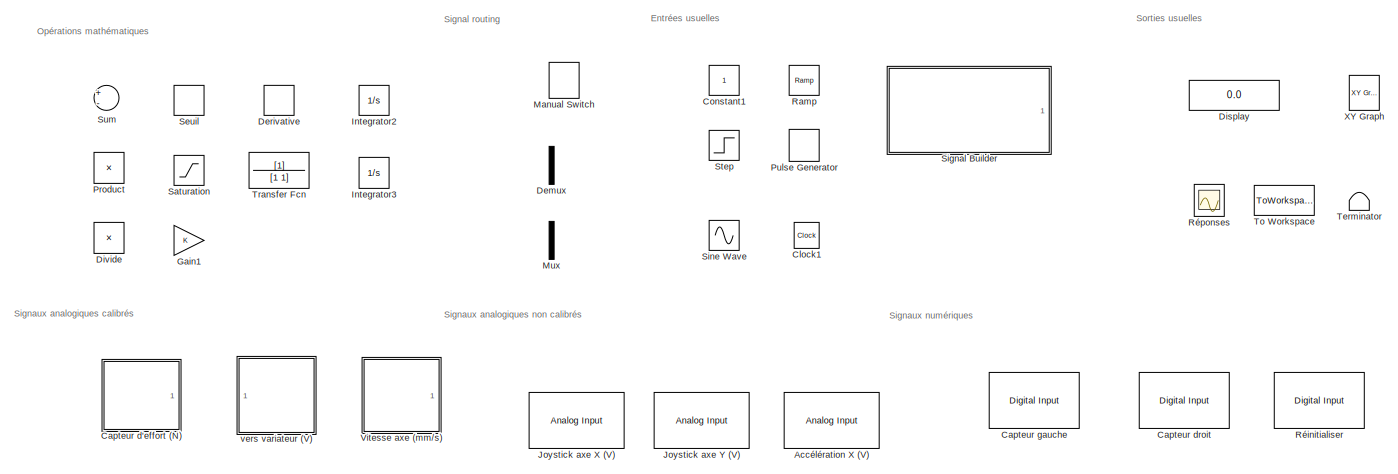
[diagram: root canvas - part 1/2, full width, top band]
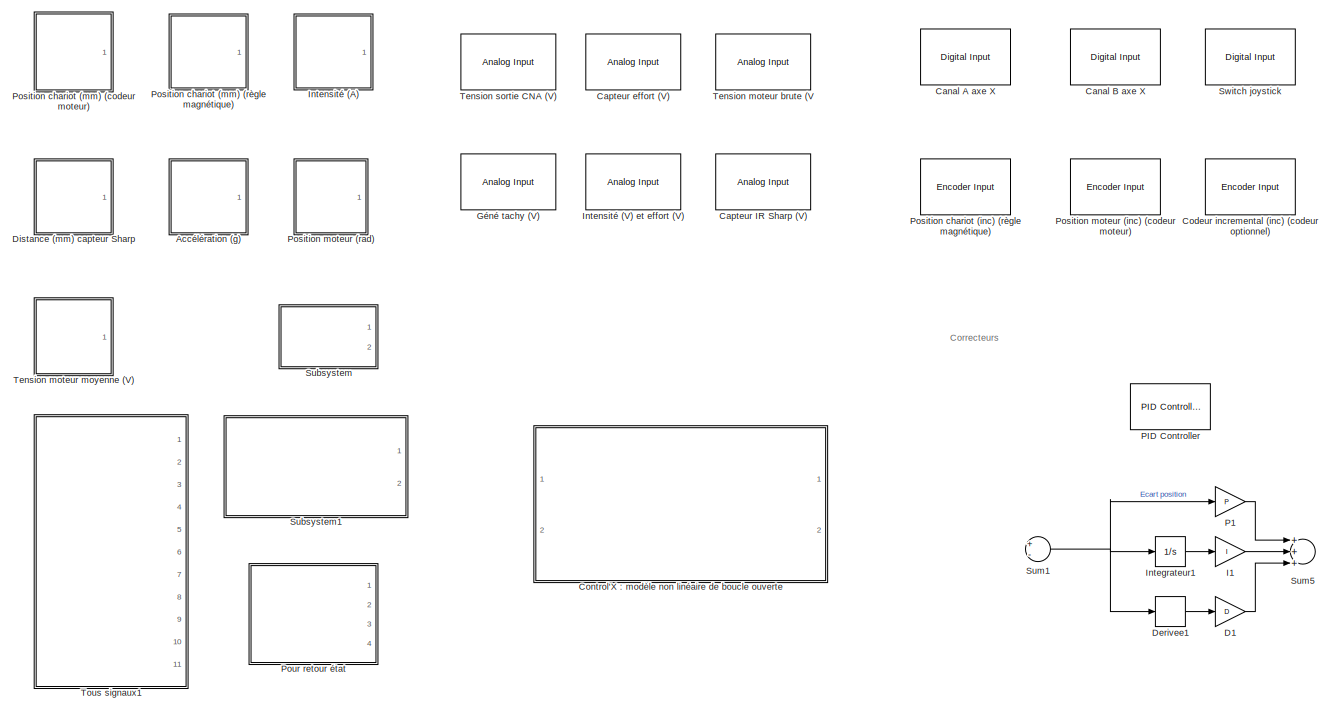
[diagram: root canvas - part 2/2, full width, bottom band]
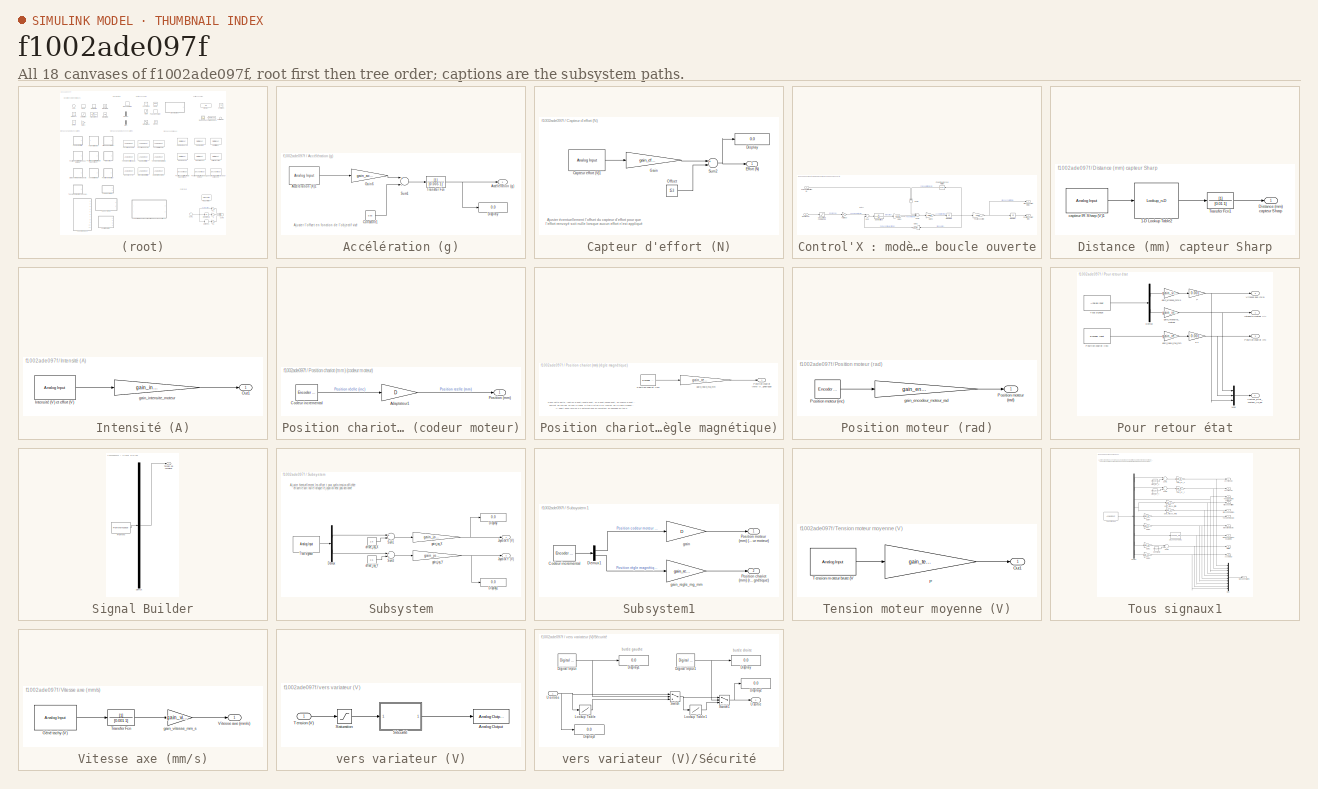
[diagram: thumbnail index - all 18 canvases of the model, root first then tree order]
MODEL slx_f1002ade097f
KIND model
CONFIG AbsTol = auto
CONFIG FixedStep = auto
CONFIG MaxStep = auto
CONFIG MinStep = auto
CONFIG RelTol = 1e-3
CONFIG SampleTimeConstraint = Unconstrained
CONFIG Solver = ode45
CONFIG SolverMode = Auto
CONFIG SolverName = ode45
CONFIG StartTime = 0.0
CONFIG StopTime = 10.0
BLOCK [SubSystem] Accélération (g)
  Ports = [0, 1]
  RequestExecContextInheritance = off
BLOCK [Reference] Accélération (g)/Accélération (X)1  REF=sldrtlib/Analog Input
  AttributesFormatString = National Instruments\nPCIe-6321 [auto]
  Channels = 15
  DataType = 1
  DrvAddress = 4294967295
  DrvName = National_Instruments/PCIe-6321
  DrvOptions = [0 0 0 2 2 2 0]
  MaxMissedTicks = 10
  Ports = [0, 1]
  RangeMode = 1
  SampleTime = dt
  ShowMissedTicks = off
  SourceBlock = sldrtlib/Analog Input
  SourceType = Simulink Desktop Real-Time Analog Input
  VoltRange = 1
  YieldWhenWaiting = off
BLOCK [Outport] Accélération (g)/Accélération (g)
  IconDisplay = Port number
BLOCK [Constant] Accélération (g)/Constant1
  SampleTime = dt
  Value = 9.65
BLOCK [Display] Accélération (g)/Display
  Decimation = 1
  Ports = [1]
BLOCK [Gain] Accélération (g)/Gain6
  Gain = gain_accelero
  OutDataTypeStr = Inherit: Inherit via internal rule
  ParamDataTypeStr = Inherit: Inherit via internal rule
  SaturateOnIntegerOverflow = off
BLOCK [Sum] Accélération (g)/Sum1
  InputSameDT = off
  Inputs = +-
  OutDataTypeStr = Inherit: Inherit via internal rule
  Ports = [2, 1]
  SaturateOnIntegerOverflow = off
BLOCK [TransferFcn] Accélération (g)/Transfer Fcn
  Denominator = [0.005 1]
BLOCK [Reference] Accélération X (V)  REF=sldrtlib/Analog Input
  AttributesFormatString = National Instruments\nPCIe-6321 [auto]
  Channels = 15
  DataType = 1
  DrvAddress = 4294967295
  DrvName = National_Instruments/PCIe-6321
  DrvOptions = [0 0 0 2 2 2 0]
  MaxMissedTicks = 10
  Ports = [0, 1]
  RangeMode = 1
  SampleTime = dt
  ShowMissedTicks = off
  SourceBlock = sldrtlib/Analog Input
  SourceType = Simulink Desktop Real-Time Analog Input
  VoltRange = 1
  YieldWhenWaiting = off
BLOCK [Reference] Canal A axe X  REF=sldrtlib/Digital Input
  AttributesFormatString = National Instruments\nPCIe-6321 [auto]
  BitMode = 1
  Channels = 5
  DataType = 1
  DrvAddress = 4294967295
  DrvName = National_Instruments/PCIe-6321
  DrvOptions = [0 0 0 2 2 2 0]
  MaxMissedTicks = 10
  Ports = [0, 1]
  SampleTime = dt
  ShowMissedTicks = off
  SourceBlock = sldrtlib/Digital Input
  SourceType = Simulink Desktop Real-Time Digital Input
  YieldWhenWaiting = on
BLOCK [Reference] Canal B axe X  REF=sldrtlib/Digital Input
  AttributesFormatString = National Instruments\nPCIe-6321 [auto]
  BitMode = 1
  Channels = 4
  DataType = 1
  DrvAddress = 4294967295
  DrvName = National_Instruments/PCIe-6321
  DrvOptions = [0 0 0 2 2 2 0]
  MaxMissedTicks = 10
  Ports = [0, 1]
  SampleTime = dt
  ShowMissedTicks = off
  SourceBlock = sldrtlib/Digital Input
  SourceType = Simulink Desktop Real-Time Digital Input
  YieldWhenWaiting = on
BLOCK [Reference] Capteur IR Sharp (V)  REF=sldrtlib/Analog Input
  AttributesFormatString = National Instruments\nPCIe-6321 [auto]
  Channels = 7
  DataType = 1
  DrvAddress = 4294967295
  DrvName = National_Instruments/PCIe-6321
  DrvOptions = [0 0 0 2 2 2 0]
  MaxMissedTicks = 10
  Ports = [0, 1]
  RangeMode = 1
  SampleTime = dt
  ShowMissedTicks = off
  SourceBlock = sldrtlib/Analog Input
  SourceType = Simulink Desktop Real-Time Analog Input
  VoltRange = 1
  YieldWhenWaiting = off
BLOCK [SubSystem] Capteur d'effort (N)
  Ports = [0, 1]
  RequestExecContextInheritance = off
BLOCK [Reference] Capteur d'effort (N)/Capteur effort (V)1  REF=sldrtlib/Analog Input
  AttributesFormatString = National Instruments\nPCIe-6321 [auto]
  Channels = 14
  DataType = 1
  DrvAddress = 4294967295
  DrvName = National_Instruments/PCIe-6321
  DrvOptions = [0 0 0 2 2 2 0]
  MaxMissedTicks = 10
  Ports = [0, 1]
  RangeMode = 1
  SampleTime = dt
  ShowMissedTicks = off
  SourceBlock = sldrtlib/Analog Input
  SourceType = Simulink Desktop Real-Time Analog Input
  VoltRange = 1
  YieldWhenWaiting = off
BLOCK [Display] Capteur d'effort (N)/Display
  Decimation = 1
  Ports = [1]
BLOCK [Outport] Capteur d'effort (N)/Effort (N)
  IconDisplay = Port number
BLOCK [Gain] Capteur d'effort (N)/Gain
  Gain = gain_effort_ext
  OutDataTypeStr = Inherit: Inherit via internal rule
  ParamDataTypeStr = Inherit: Inherit via internal rule
  SaturateOnIntegerOverflow = off
BLOCK [Constant] Capteur d'effort (N)/Offset
  Value = 15.3
BLOCK [Sum] Capteur d'effort (N)/Sum2
  InputSameDT = off
  Inputs = +-
  OutDataTypeStr = Inherit: Inherit via internal rule
  Ports = [2, 1]
  SaturateOnIntegerOverflow = off
BLOCK [Reference] Capteur droit  REF=sldrtlib/Digital Input
  AttributesFormatString = National Instruments\nPCIe-6321 [auto]
  BitMode = 1
  Channels = 2
  DataType = 1
  DrvAddress = 4294967295
  DrvName = National_Instruments/PCIe-6321
  DrvOptions = [0 0 0 2 2 2 0]
  MaxMissedTicks = 10
  Ports = [0, 1]
  SampleTime = dt
  ShowMissedTicks = off
  SourceBlock = sldrtlib/Digital Input
  SourceType = Simulink Desktop Real-Time Digital Input
  YieldWhenWaiting = on
BLOCK [Reference] Capteur effort (V)  REF=sldrtlib/Analog Input
  AttributesFormatString = National Instruments\nPCIe-6321 [auto]
  Channels = 14
  DataType = 1
  DrvAddress = 4294967295
  DrvName = National_Instruments/PCIe-6321
  DrvOptions = [0 0 0 2 2 2 0]
  MaxMissedTicks = 10
  Ports = [0, 1]
  RangeMode = 1
  SampleTime = dt
  ShowMissedTicks = off
  SourceBlock = sldrtlib/Analog Input
  SourceType = Simulink Desktop Real-Time Analog Input
  VoltRange = 1
  YieldWhenWaiting = off
BLOCK [Reference] Capteur gauche  REF=sldrtlib/Digital Input
  AttributesFormatString = National Instruments\nPCIe-6321 [auto]
  BitMode = 1
  Channels = 3
  DataType = 1
  DrvAddress = 4294967295
  DrvName = National_Instruments/PCIe-6321
  DrvOptions = [0 0 0 2 2 2 0]
  MaxMissedTicks = 10
  Ports = [0, 1]
  SampleTime = dt
  ShowMissedTicks = off
  SourceBlock = sldrtlib/Digital Input
  SourceType = Simulink Desktop Real-Time Digital Input
  YieldWhenWaiting = on
BLOCK [Clock] Clock1
  DisplayTime = on
BLOCK [Reference] Codeur incremental  (inc) (codeur optionnel)  REF=sldrtlib/Encoder Input
  AttributesFormatString = National Instruments\nPCIe-6321 [auto]
  Channels = 4
  DataType = 1
  DrvAddress = 4294967295
  DrvName = National_Instruments/PCIe-6321
  DrvOptions = [0 0 0 2 2 2 2]
  IndexPulse = 1
  InputFilter = Inf
  MaxMissedTicks = 10
  Ports = [0, 1]
  QuadMode = 3
  SampleTime = dt
  ShowMissedTicks = off
  SourceBlock = sldrtlib/Encoder Input
  SourceType = Simulink Desktop Real-Time Encoder Input
  YieldWhenWaiting = off
BLOCK [Constant] Constant1
  SampleTime = dt
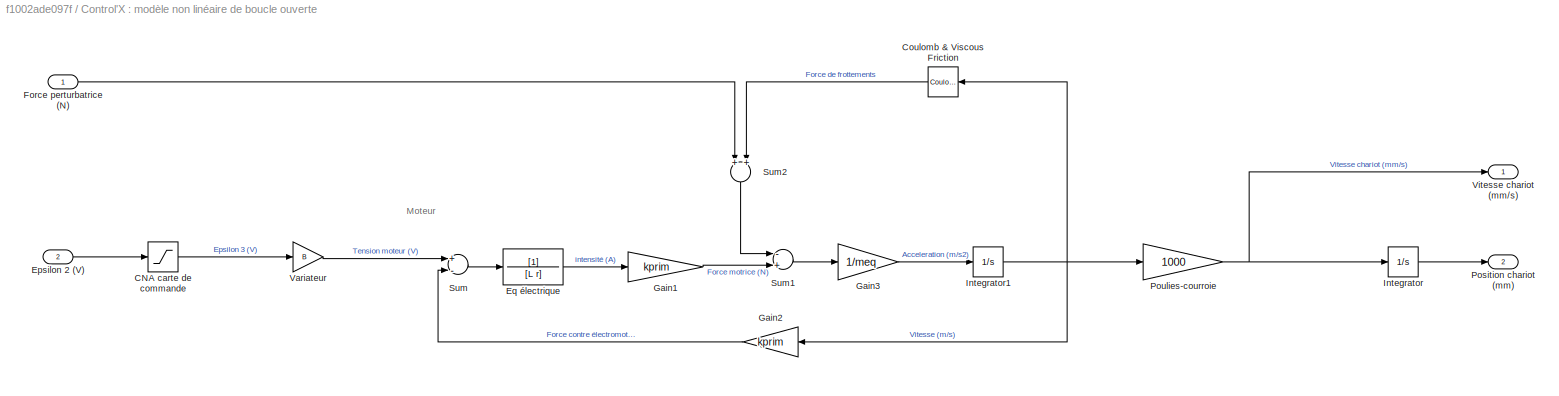
BLOCK [SubSystem] Control'X : modèle non linéaire de boucle ouverte
  Ports = [2, 2]
  RequestExecContextInheritance = off
BLOCK [Saturate] Control'X : modèle non linéaire de boucle ouverte/CNA carte de commande
  InputPortMap = u0
  LowerLimit = -Vsat
  Ports = [1, 1]
  UpperLimit = Vsat
BLOCK [Reference] Control'X : modèle non linéaire de boucle ouverte/Coulomb & Viscous Friction  REF=simulink/Discontinuities/Coulomb &
Viscous Friction
  Ports = [1, 1]
  SourceBlock = simulink/Discontinuities/Coulomb &\nViscous Friction
  SourceType = Coulombic and Viscous Friction
  gain = fv
  offset = Ffrott
BLOCK [Inport] Control'X : modèle non linéaire de boucle ouverte/Epsilon 2 (V)
  IconDisplay = Port number
  Port = 2
BLOCK [TransferFcn] Control'X : modèle non linéaire de boucle ouverte/Eq électrique
  Denominator = [L r]
BLOCK [Inport] Control'X : modèle non linéaire de boucle ouverte/Force perturbatrice (N)
  IconDisplay = Port number
BLOCK [Gain] Control'X : modèle non linéaire de boucle ouverte/Gain1
  Gain = kprim
  OutDataTypeStr = Inherit: Inherit via internal rule
  ParamDataTypeStr = Inherit: Inherit via internal rule
  SaturateOnIntegerOverflow = off
BLOCK [Gain] Control'X : modèle non linéaire de boucle ouverte/Gain2
  Gain = kprim
  OutDataTypeStr = Inherit: Inherit via internal rule
  ParamDataTypeStr = Inherit: Inherit via internal rule
  SaturateOnIntegerOverflow = off
BLOCK [Gain] Control'X : modèle non linéaire de boucle ouverte/Gain3
  Gain = 1/meq
  OutDataTypeStr = Inherit: Inherit via internal rule
  ParamDataTypeStr = Inherit: Inherit via internal rule
  SaturateOnIntegerOverflow = off
BLOCK [Integrator] Control'X : modèle non linéaire de boucle ouverte/Integrator
  Ports = [1, 1]
BLOCK [Integrator] Control'X : modèle non linéaire de boucle ouverte/Integrator1
  Ports = [1, 1]
BLOCK [Outport] Control'X : modèle non linéaire de boucle ouverte/Position chariot (mm)
  IconDisplay = Port number
  Port = 2
BLOCK [Gain] Control'X : modèle non linéaire de boucle ouverte/Poulies-courroie
  Gain = 1000
  OutDataTypeStr = Inherit: Inherit via internal rule
  ParamDataTypeStr = Inherit: Inherit via internal rule
  SaturateOnIntegerOverflow = off
BLOCK [Sum] Control'X : modèle non linéaire de boucle ouverte/Sum
  InputSameDT = off
  Inputs = +-
  OutDataTypeStr = Inherit: Inherit via internal rule
  Ports = [2, 1]
  SaturateOnIntegerOverflow = off
BLOCK [Sum] Control'X : modèle non linéaire de boucle ouverte/Sum1
  InputSameDT = off
  Inputs = -+
  OutDataTypeStr = Inherit: Inherit via internal rule
  Ports = [2, 1]
  SaturateOnIntegerOverflow = off
BLOCK [Sum] Control'X : modèle non linéaire de boucle ouverte/Sum2
  InputSameDT = off
  OutDataTypeStr = Inherit: Inherit via internal rule
  Ports = [2, 1]
  SaturateOnIntegerOverflow = off
BLOCK [Gain] Control'X : modèle non linéaire de boucle ouverte/Variateur
  Gain = B
  OutDataTypeStr = Inherit: Inherit via internal rule
  ParamDataTypeStr = Inherit: Inherit via internal rule
  SaturateOnIntegerOverflow = off
BLOCK [Outport] Control'X : modèle non linéaire de boucle ouverte/Vitesse chariot (mm//s)
  IconDisplay = Port number
BLOCK [Gain] D1
  Gain = D
  OutDataTypeStr = Inherit: Inherit via internal rule
  ParamDataTypeStr = Inherit: Inherit via internal rule
  SaturateOnIntegerOverflow = off
BLOCK [Demux] Demux
  DisplayOption = bar
  Outputs = 2
  Ports = [1, 2]
BLOCK [Derivative] Derivative
BLOCK [Derivative] Derivee1
BLOCK [Display] Display
  Decimation = 1
  Ports = [1]
BLOCK [SubSystem] Distance (mm) capteur Sharp
  Ports = [0, 1]
  RequestExecContextInheritance = off
BLOCK [Lookup_n-D] Distance (mm) capteur Sharp/1-D Lookup Table2
  BreakpointsForDimension1 = vecteur_de_tensions
  ExtrapMethod = Clip
  InternalRulePriority = Speed
  NumberOfTableDimensions = 1
  Ports = [1, 1]
  RndMeth = Simplest
  Table = vecteur_des_distances
  UseLastTableValue = on
BLOCK [Outport] Distance (mm) capteur Sharp/Distance (mm) capteur Sharp
  IconDisplay = Port number
BLOCK [TransferFcn] Distance (mm) capteur Sharp/Transfer Fcn1
  Denominator = [0.01 1]
BLOCK [Reference] Distance (mm) capteur Sharp/capteur IR Sharp (V)1  REF=sldrtlib/Analog Input
  AttributesFormatString = National Instruments\nPCIe-6321 [auto]
  Channels = 7
  DataType = 1
  DrvAddress = 4294967295
  DrvName = National_Instruments/PCIe-6321
  DrvOptions = [0 0 0 2 2 2 0]
  MaxMissedTicks = 10
  Ports = [0, 1]
  RangeMode = 1
  SampleTime = dt
  ShowMissedTicks = off
  SourceBlock = sldrtlib/Analog Input
  SourceType = Simulink Desktop Real-Time Analog Input
  VoltRange = 1
  YieldWhenWaiting = off
BLOCK [Product] Divide
  InputSameDT = off
  Inputs = */
  OutDataTypeStr = Inherit: Inherit via internal rule
  Ports = [2, 1]
  RndMeth = Floor
  SaturateOnIntegerOverflow = off
BLOCK [Gain] Gain1
  OutDataTypeStr = Inherit: Inherit via internal rule
  ParamDataTypeStr = Inherit: Inherit via internal rule
  SaturateOnIntegerOverflow = off
BLOCK [Reference] Géné tachy (V)  REF=sldrtlib/Analog Input
  AttributesFormatString = National Instruments\nPCIe-6321 [auto]
  Channels = 4
  DataType = 1
  DrvAddress = 4294967295
  DrvName = National_Instruments/PCIe-6321
  DrvOptions = [0 0 0 2 2 2 0]
  MaxMissedTicks = 10
  Ports = [0, 1]
  RangeMode = 1
  SampleTime = dt
  ShowMissedTicks = off
  SourceBlock = sldrtlib/Analog Input
  SourceType = Simulink Desktop Real-Time Analog Input
  VoltRange = 1
  YieldWhenWaiting = off
BLOCK [Gain] I1
  Gain = I
  OutDataTypeStr = Inherit: Inherit via internal rule
  ParamDataTypeStr = Inherit: Inherit via internal rule
  SaturateOnIntegerOverflow = off
BLOCK [Integrator] Integrateur1
  Ports = [1, 1]
BLOCK [Integrator] Integrator2
  Ports = [1, 1]
BLOCK [Integrator] Integrator3
  InitialConditionSource = external
  Ports = [2, 1]
BLOCK [Reference] Intensité  (V) et effort (V)  REF=sldrtlib/Analog Input
  AttributesFormatString = National Instruments\nPCIe-6321 [auto]
  Channels = [6,14]
  DataType = 1
  DrvAddress = 4294967295
  DrvName = National_Instruments/PCIe-6321
  DrvOptions = [0 0 0 2 2 2 0]
  MaxMissedTicks = 10
  Ports = [0, 1]
  RangeMode = 1
  SampleTime = dt
  ShowMissedTicks = off
  SourceBlock = sldrtlib/Analog Input
  SourceType = Simulink Desktop Real-Time Analog Input
  VoltRange = 1
  YieldWhenWaiting = off
BLOCK [SubSystem] Intensité (A)
  Ports = [0, 1]
  RequestExecContextInheritance = off
BLOCK [Reference] Intensité (A)/Intensité  (V) et effort (V)  REF=sldrtlib/Analog Input
  AttributesFormatString = National Instruments\nPCIe-6321 [auto]
  Channels = [6]
  DataType = 1
  DrvAddress = 4294967295
  DrvName = National_Instruments/PCIe-6321
  DrvOptions = [0 0 0 2 2 2 0]
  MaxMissedTicks = 10
  Ports = [0, 1]
  RangeMode = 1
  SampleTime = dt
  ShowMissedTicks = off
  SourceBlock = sldrtlib/Analog Input
  SourceType = Simulink Desktop Real-Time Analog Input
  VoltRange = 1
  YieldWhenWaiting = off
BLOCK [Outport] Intensité (A)/Out1
  IconDisplay = Port number
BLOCK [Gain] Intensité (A)/gain_intensite_moteur
  Gain = gain_intensite_moteur
  OutDataTypeStr = Inherit: Inherit via internal rule
  ParamDataTypeStr = Inherit: Inherit via internal rule
  SaturateOnIntegerOverflow = off
BLOCK [Reference] Joystick  axe X (V)  REF=sldrtlib/Analog Input
  AttributesFormatString = National Instruments\nPCIe-6321 [auto]
  Channels = 1
  DataType = 1
  DrvAddress = 4294967295
  DrvName = National_Instruments/PCIe-6321
  DrvOptions = [0 0 0 2 2 2 0]
  MaxMissedTicks = 10
  Ports = [0, 1]
  RangeMode = 1
  SampleTime = dt
  ShowMissedTicks = off
  SourceBlock = sldrtlib/Analog Input
  SourceType = Simulink Desktop Real-Time Analog Input
  VoltRange = 1
  YieldWhenWaiting = off
BLOCK [Reference] Joystick  axe Y (V)  REF=sldrtlib/Analog Input
  AttributesFormatString = National Instruments\nPCIe-6321 [auto]
  Channels = 2
  DataType = 1
  DrvAddress = 4294967295
  DrvName = National_Instruments/PCIe-6321
  DrvOptions = [0 0 0 2 2 2 0]
  MaxMissedTicks = 10
  Ports = [0, 1]
  RangeMode = 1
  SampleTime = dt
  ShowMissedTicks = off
  SourceBlock = sldrtlib/Analog Input
  SourceType = Simulink Desktop Real-Time Analog Input
  VoltRange = 1
  YieldWhenWaiting = off
BLOCK [ManualSwitch] Manual Switch
BLOCK [Mux] Mux
  DisplayOption = bar
  Inputs = 2
  Ports = [2, 1]
BLOCK [Gain] P1
  Gain = P
  OutDataTypeStr = Inherit: Inherit via internal rule
  ParamDataTypeStr = Inherit: Inherit via internal rule
  SaturateOnIntegerOverflow = off
BLOCK [Reference] PID Controller  REF=simulink/Continuous/PID Controller
  AntiWindupMode = none
  Controller = PID
  ControllerParametersSource = internal
  D = 0
  DGainOutDataTypeStr = Inherit: Inherit via internal rule
  DOutDataTypeStr = Inherit: Inherit via internal rule
  DOutMax = []
  DOutMin = []
  DParamDataTypeStr = Inherit: Inherit via internal rule
  DParamMax = []
  DParamMin = []
  DProdOutDataTypeStr = Inherit: Inherit via internal rule
  DifferentiatorICPrevScaledInput = 0
  DifferentiatorOutDataTypeStr = Inherit: Inherit via internal rule
  DifferentiatorOutMax = []
  DifferentiatorOutMin = []
  ExternalReset = none
  FilterContinuousStateAttributes = ''
  FilterMethod = Forward Euler
  FilterOutDataTypeStr = Inherit: Inherit via internal rule
  FilterOutMax = []
  FilterOutMin = []
  FilterRTWStateStorageClass = Auto
  FilterStateMustResolveToSignalObject = off
  Form = Parallel
  I = 1
  IGainOutDataTypeStr = Inherit: Inherit via internal rule
  IOutDataTypeStr = Inherit: Inherit via internal rule
  IOutMax = []
  IOutMin = []
  IParamDataTypeStr = Inherit: Inherit via internal rule
  IParamMax = []
  IParamMin = []
  IProdOutDataTypeStr = Inherit: Inherit via internal rule
  IgnoreLimit = off
  InitialConditionForFilter = 0
  InitialConditionForIntegrator = 0
  InitialConditionSource = internal
  IntegratorContinuousStateAttributes = ''
  IntegratorMethod = Forward Euler
  IntegratorOutDataTypeStr = Inherit: Inherit via internal rule
  IntegratorOutMax = []
  IntegratorOutMin = []
  IntegratorRTWStateStorageClass = Auto
  IntegratorStateMustResolveToSignalObject = off
  Kb = 1
  KbOutDataTypeStr = Inherit: Inherit via internal rule
  KbOutMax = []
  KbOutMin = []
  KbParamDataTypeStr = Inherit: Inherit via internal rule
  KbParamMax = []
  KbParamMin = []
  Kt = 1
  KtOutDataTypeStr = Inherit: Inherit via internal rule
  KtOutMax = []
  KtOutMin = []
  KtParamDataTypeStr = Inherit: Inherit via internal rule
  KtParamMax = []
  KtParamMin = []
  LimitOutput = off
  LinearizeAsGain = off
  LockScale = off
  LowerSaturationLimit = -inf
  N = 100
  NGainOutDataTypeStr = Inherit: Inherit via internal rule
  NOutDataTypeStr = Inherit: Inherit via internal rule
  NOutMax = []
  NOutMin = []
  NParamDataTypeStr = Inherit: Inherit via internal rule
  NParamMax = []
  NParamMin = []
  NProdOutDataTypeStr = Inherit: Inherit via internal rule
  P = 1
  PGainOutDataTypeStr = Inherit: Inherit via internal rule
  POutDataTypeStr = Inherit: Inherit via internal rule
  POutMax = []
  POutMin = []
  PParamDataTypeStr = Inherit: Inherit via internal rule
  PParamMax = []
  PParamMin = []
  PProdOutDataTypeStr = Inherit: Inherit via internal rule
  Ports = [1, 1]
  RndMeth = Floor
  SampleTime = -1
  SaturateOnIntegerOverflow = off
  SaturationOutDataTypeStr = Inherit: Same as input
  SaturationOutMax = []
  SaturationOutMin = []
  SourceBlock = simulink/Continuous/PID Controller
  SourceType = PID 1dof
  SumAccumDataTypeStr = Inherit: Inherit via internal rule
  SumDAccumDataTypeStr = Inherit: Inherit via internal rule
  SumDOutDataTypeStr = Inherit: Inherit via internal rule
  SumDOutMax = []
  SumDOutMin = []
  SumI1AccumDataTypeStr = Inherit: Inherit via internal rule
  SumI1OutDataTypeStr = Inherit: Inherit via internal rule
  SumI1OutMax = []
  SumI1OutMin = []
  SumI2AccumDataTypeStr = Inherit: Inherit via internal rule
  SumI2OutDataTypeStr = Inherit: Inherit via internal rule
  SumI2OutMax = []
  SumI2OutMin = []
  SumI3AccumDataTypeStr = Inherit: Inherit via internal rule
  SumI3OutDataTypeStr = Inherit: Inherit via internal rule
  SumI3OutMax = []
  SumI3OutMin = []
  SumOutDataTypeStr = Inherit: Inherit via internal rule
  SumOutMax = []
  SumOutMin = []
  TimeDomain = Continuous-time
  TrackingMode = off
  UpperSaturationLimit = inf
  UseFilter = on
  ZeroCross = on
BLOCK [Reference] Position chariot (inc) (règle magnétique)  REF=sldrtlib/Encoder Input
  AttributesFormatString = National Instruments\nPCIe-6321 [auto]
  Channels = 2
  DataType = 1
  DrvAddress = 4294967295
  DrvName = National_Instruments/PCIe-6321
  DrvOptions = [0 0 0 2 2 2 0]
  IndexPulse = 1
  InputFilter = Inf
  MaxMissedTicks = 10
  Ports = [0, 1]
  QuadMode = 3
  SampleTime = dt
  ShowMissedTicks = off
  SourceBlock = sldrtlib/Encoder Input
  SourceType = Simulink Desktop Real-Time Encoder Input
  YieldWhenWaiting = off
BLOCK [SubSystem] Position chariot (mm) (codeur moteur)
  Ports = [0, 1]
  RequestExecContextInheritance = off
BLOCK [Gain] Position chariot (mm) (codeur moteur)/Adaptateur1
  Gain = D
  OutDataTypeStr = Inherit: Inherit via internal rule
  ParamDataTypeStr = Inherit: Inherit via internal rule
  SaturateOnIntegerOverflow = off
BLOCK [Reference] Position chariot (mm) (codeur moteur)/Codeur incremental  REF=sldrtlib/Encoder Input
  AttributesFormatString = National Instruments\nPCIe-6321 [auto]
  Channels = 1
  DataType = 1
  DrvAddress = 4294967295
  DrvName = National_Instruments/PCIe-6321
  DrvOptions = [0 0 0 2 2 2 0]
  IndexPulse = 1
  InputFilter = Inf
  MaxMissedTicks = 10
  Ports = [0, 1]
  QuadMode = 3
  SampleTime = dt
  ShowMissedTicks = off
  SourceBlock = sldrtlib/Encoder Input
  SourceType = Simulink Desktop Real-Time Encoder Input
  YieldWhenWaiting = off
BLOCK [Outport] Position chariot (mm) (codeur moteur)/Position (mm)
  IconDisplay = Port number
BLOCK [SubSystem] Position chariot (mm) (règle magnétique)
  Ports = [0, 1]
  RequestExecContextInheritance = off
BLOCK [Reference] Position chariot (mm) (règle magnétique)/Position chariot (inc)  REF=sldrtlib/Encoder Input
  AttributesFormatString = National Instruments\nPCIe-6321 [auto]
  Channels = 2
  DataType = 1
  DrvAddress = 4294967295
  DrvName = National_Instruments/PCIe-6321
  DrvOptions = [0 0 0 2 2 2 0]
  IndexPulse = 1
  InputFilter = Inf
  MaxMissedTicks = 10
  Ports = [0, 1]
  QuadMode = 3
  SampleTime = dt
  ShowMissedTicks = off
  SourceBlock = sldrtlib/Encoder Input
  SourceType = Simulink Desktop Real-Time Encoder Input
  YieldWhenWaiting = off
BLOCK [Outport] Position chariot (mm) (règle magnétique)/Position chariot (mm) (règle magnétique)
  IconDisplay = Port number
BLOCK [Gain] Position chariot (mm) (règle magnétique)/gain_regle_mg_mm
  Gain = gain_regle_mg
  OutDataTypeStr = Inherit: Inherit via internal rule
  ParamDataTypeStr = Inherit: Inherit via internal rule
  SaturateOnIntegerOverflow = off
BLOCK [Reference] Position moteur (inc) (codeur moteur)  REF=sldrtlib/Encoder Input
  AttributesFormatString = National Instruments\nPCIe-6321 [auto]
  Channels = 1
  DataType = 1
  DrvAddress = 4294967295
  DrvName = National_Instruments/PCIe-6321
  DrvOptions = [0 0 0 2 2 2 0]
  IndexPulse = 1
  InputFilter = Inf
  MaxMissedTicks = 10
  Ports = [0, 1]
  QuadMode = 3
  SampleTime = dt
  ShowMissedTicks = off
  SourceBlock = sldrtlib/Encoder Input
  SourceType = Simulink Desktop Real-Time Encoder Input
  YieldWhenWaiting = off
BLOCK [SubSystem] Position moteur (rad)
  Ports = [0, 1]
  RequestExecContextInheritance = off
BLOCK [Reference] Position moteur (rad)/Position moteur (inc)  REF=sldrtlib/Encoder Input
  AttributesFormatString = National Instruments\nPCIe-6321 [auto]
  Channels = 1
  DataType = 1
  DrvAddress = 4294967295
  DrvName = National_Instruments/PCIe-6321
  DrvOptions = [0 0 0 2 2 2 0]
  IndexPulse = 2
  InputFilter = Inf
  MaxMissedTicks = 10
  Ports = [0, 1]
  QuadMode = 3
  SampleTime = dt
  ShowMissedTicks = off
  SourceBlock = sldrtlib/Encoder Input
  SourceType = Simulink Desktop Real-Time Encoder Input
  YieldWhenWaiting = off
BLOCK [Outport] Position moteur (rad)/Position moteur (rad)
  IconDisplay = Port number
BLOCK [Gain] Position moteur (rad)/gain_encodeur_moteur_rad
  Gain = gain_encodeur_moteur_rad
  OutDataTypeStr = Inherit: Inherit via internal rule
  ParamDataTypeStr = Inherit: Inherit via internal rule
  SaturateOnIntegerOverflow = off
BLOCK [SubSystem] Pour retour état
  Ports = [0, 4]
  RequestExecContextInheritance = off
BLOCK [Demux] Pour retour état/Demux
  DisplayOption = bar
  Outputs = 2
  Ports = [1, 2]
BLOCK [Outport] Pour retour état/Intensité moteur (A)
  IconDisplay = Port number
BLOCK [Mux] Pour retour état/Mux
  DisplayOption = bar
  Inputs = 3
  Ports = [3, 1]
BLOCK [Gain] Pour retour état/P
  Gain = 0.001
  OutDataTypeStr = Inherit: Inherit via internal rule
  ParamDataTypeStr = Inherit: Inherit via internal rule
  SaturateOnIntegerOverflow = off
BLOCK [Gain] Pour retour état/P1
  Gain = 0.001
  OutDataTypeStr = Inherit: Inherit via internal rule
  ParamDataTypeStr = Inherit: Inherit via internal rule
  SaturateOnIntegerOverflow = off
BLOCK [Reference] Pour retour état/Position chariot (inc)  REF=sldrtlib/Encoder Input
  AttributesFormatString = National Instruments\nPCIe-6321 [auto]
  Channels = 2
  DataType = 1
  DrvAddress = 4294967295
  DrvName = National_Instruments/PCIe-6321
  DrvOptions = [0 0 0 2 2 2 0]
  IndexPulse = 2
  InputFilter = Inf
  MaxMissedTicks = 10
  Ports = [0, 1]
  QuadMode = 3
  SampleTime = dt
  ShowMissedTicks = off
  SourceBlock = sldrtlib/Encoder Input
  SourceType = Simulink Desktop Real-Time Encoder Input
  YieldWhenWaiting = off
BLOCK [Outport] Pour retour état/Position chariot (m)
  IconDisplay = Port number
  Port = 3
BLOCK [Reference] Pour retour état/Tous signaux  REF=sldrtlib/Analog Input
  AttributesFormatString = National Instruments\nPCIe-6321 [auto]
  Channels = [4 6]
  DataType = 1
  DrvAddress = 4294967295
  DrvName = National_Instruments/PCIe-6321
  DrvOptions = [0 0 0 2 2 2 0]
  MaxMissedTicks = 10
  Ports = [0, 1]
  RangeMode = 1
  SampleTime = dt
  ShowMissedTicks = off
  SourceBlock = sldrtlib/Analog Input
  SourceType = Simulink Desktop Real-Time Analog Input
  VoltRange = 1
  YieldWhenWaiting = off
BLOCK [Outport] Pour retour état/Vecteur_Etat_Moteur_lin_eq
  IconDisplay = Port number
  Port = 4
BLOCK [Outport] Pour retour état/Vitesse axe (m//s)
  IconDisplay = Port number
  Port = 2
BLOCK [Gain] Pour retour état/gain_intensite_moteur
  Gain = gain_intensite_moteur
  OutDataTypeStr = Inherit: Inherit via internal rule
  ParamDataTypeStr = Inherit: Inherit via internal rule
  SaturateOnIntegerOverflow = off
BLOCK [Gain] Pour retour état/gain_regle_mg_mm
  Gain = gain_regle_mg
  OutDataTypeStr = Inherit: Inherit via internal rule
  ParamDataTypeStr = Inherit: Inherit via internal rule
  SaturateOnIntegerOverflow = off
BLOCK [Gain] Pour retour état/gain_vitesse_mm//s
  Gain = gain_vitesse_mm_s
  OutDataTypeStr = Inherit: Inherit via internal rule
  ParamDataTypeStr = Inherit: Inherit via internal rule
  SaturateOnIntegerOverflow = off
BLOCK [Product] Product
  InputSameDT = off
  OutDataTypeStr = Inherit: Inherit via internal rule
  Ports = [2, 1]
  SaturateOnIntegerOverflow = off
BLOCK [DiscretePulseGenerator] Pulse Generator
  Amplitude = 100
  Period = 5
  Ports = [0, 1]
  PulseType = Time based
  PulseWidth = 50
BLOCK [Reference] Ramp  REF=simulink/Sources/Ramp
  Ports = [0, 1]
  SourceBlock = simulink/Sources/Ramp
  SourceType = Ramp
  VectorParams1D = on
  X0 = 0
  slope = 1
  start = 0
BLOCK [Reference] Réinitialiser  REF=sldrtlib/Digital Input
  AttributesFormatString = National Instruments\nPCIe-6321 [auto]
  BitMode = 1
  Channels = 1
  DataType = 1
  DrvAddress = 4294967295
  DrvName = National_Instruments/PCIe-6321
  DrvOptions = [0 0 0 2 2 2 0]
  MaxMissedTicks = 10
  Ports = [0, 1]
  SampleTime = dt
  ShowMissedTicks = off
  SourceBlock = sldrtlib/Digital Input
  SourceType = Simulink Desktop Real-Time Digital Input
  YieldWhenWaiting = on
BLOCK [Scope] Réponses
  Floating = off
  LimitDataPoints = off
  MaxDataPoints = 10001
  NumInputPorts = 1
  Ports = [1]
  SampleTime = 0
  SaveName = y2
  ShowLegends = on
  TimeRange = 10
  YMax = 120
  YMin = -20
  ZoomMode = xonly
BLOCK [Saturate] Saturation
  InputPortMap = u0
  Ports = [1, 1]
BLOCK [DeadZone] Seuil
BLOCK [SubSystem] Signal Builder
  ClipboardFcn = sigbuilder_block('clipboard');
  CloseFcn = sigbuilder_block('close');
  ContinueFcn = sigbuilder_block('continue')
  CopyFcn = sigbuilder_block('copy');
  DeleteFcn = sigbuilder_block('delete');
  LoadFcn = sigbuilder_block('load');
  MaskHideContents = on
  ModelCloseFcn = sigbuilder_block('modelClose');
  NameChangeFcn = sigbuilder_block('namechange');
  OpenFcn = sigbuilder_block('open',[141 150 550.5 399.75 ]);
  PauseFcn = sigbuilder_block('pause')
  Ports = [0, 1]
  PreSaveFcn = sigbuilder_block('preSave');
  RequestExecContextInheritance = off
  StartFcn = sigbuilder_block('start');
  StopFcn = sigbuilder_block('stop');
  Tag = STV Subsys
BLOCK [Demux] Signal Builder/Demux
  Outputs = 1
  Ports = [1, 1]
  Tag = STV Demux
BLOCK [FromWorkspace] Signal Builder/FromWs
  SampleTime = 0
  Tag = STV FromWs
  VariableName = tuvar
  ZeroCross = on
BLOCK [Outport] Signal Builder/Tension de consigne
  IconDisplay = Port number
  Tag = STV Outport
BLOCK [Sin] Sine Wave
  Amplitude = 5
  Frequency = 2*pi
  Ports = [0, 1]
BLOCK [Step] Step
  SampleTime = 0
BLOCK [SubSystem] Subsystem
  Ports = [0, 2]
  RequestExecContextInheritance = off
BLOCK [Demux] Subsystem/Demux
  DisplayOption = bar
  Outputs = 2
  Ports = [1, 2]
BLOCK [Display] Subsystem/Display
  Decimation = 1
  Ports = [1]
BLOCK [Display] Subsystem/Display1
  Decimation = 1
  Ports = [1]
BLOCK [Outport] Subsystem/Joystick X (V)
  IconDisplay = Port number
BLOCK [Outport] Subsystem/Joystick Y (V)
  IconDisplay = Port number
  Port = 2
BLOCK [Sum] Subsystem/Sum1
  InputSameDT = off
  Inputs = +-
  OutDataTypeStr = Inherit: Inherit via internal rule
  Ports = [2, 1]
  SaturateOnIntegerOverflow = off
BLOCK [Sum] Subsystem/Sum3
  InputSameDT = off
  Inputs = +-
  OutDataTypeStr = Inherit: Inherit via internal rule
  Ports = [2, 1]
  SaturateOnIntegerOverflow = off
BLOCK [Reference] Subsystem/Tous signaux  REF=sldrtlib/Analog Input
  AttributesFormatString = National Instruments\nPCIe-6321 [auto]
  Channels = [1 2]
  DataType = 1
  DrvAddress = 4294967295
  DrvName = National_Instruments/PCIe-6321
  DrvOptions = [0 0 0 2 2 2 0]
  MaxMissedTicks = 10
  Ports = [0, 1]
  RangeMode = 1
  SampleTime = dt
  ShowMissedTicks = off
  SourceBlock = sldrtlib/Analog Input
  SourceType = Simulink Desktop Real-Time Analog Input
  VoltRange = 1
  YieldWhenWaiting = off
BLOCK [Gain] Subsystem/gain_joy_X
  Gain = gain_joy_X
  OutDataTypeStr = Inherit: Inherit via internal rule
  ParamDataTypeStr = Inherit: Inherit via internal rule
  SaturateOnIntegerOverflow = off
BLOCK [Gain] Subsystem/gain_joy_Y
  Gain = gain_joy_X
  OutDataTypeStr = Inherit: Inherit via internal rule
  ParamDataTypeStr = Inherit: Inherit via internal rule
  SaturateOnIntegerOverflow = off
BLOCK [Constant] Subsystem/offset_joy_X
  Value = 2.5
BLOCK [Constant] Subsystem/offset_joy_Y
  Value = 2.5
BLOCK [SubSystem] Subsystem1
  Ports = [0, 2]
  RequestExecContextInheritance = off
BLOCK [Reference] Subsystem1/Codeur incremental  REF=sldrtlib/Encoder Input
  AttributesFormatString = National Instruments\nPCIe-6321 [auto]
  Channels = [1,2]
  DataType = 1
  DrvAddress = 4294967295
  DrvName = National_Instruments/PCIe-6321
  DrvOptions = [0 0 0 2 2 2 2]
  IndexPulse = 1
  InputFilter = Inf
  MaxMissedTicks = 10
  Ports = [0, 1]
  QuadMode = 3
  SampleTime = dt
  ShowMissedTicks = off
  SourceBlock = sldrtlib/Encoder Input
  SourceType = Simulink Desktop Real-Time Encoder Input
  YieldWhenWaiting = off
BLOCK [Demux] Subsystem1/Demux1
  DisplayOption = bar
  Outputs = 2
  Ports = [1, 2]
BLOCK [Outport] Subsystem1/Position chariot (mm) (règle magnétique)
  IconDisplay = Port number
  Port = 2
BLOCK [Outport] Subsystem1/Position moteur (mm) (codeur moteur)
  IconDisplay = Port number
BLOCK [Gain] Subsystem1/gain
  Gain = D
  OutDataTypeStr = Inherit: Inherit via internal rule
  ParamDataTypeStr = Inherit: Inherit via internal rule
  SaturateOnIntegerOverflow = off
BLOCK [Gain] Subsystem1/gain_regle_mg_mm
  Gain = gain_regle_mg
  OutDataTypeStr = Inherit: Inherit via internal rule
  ParamDataTypeStr = Inherit: Inherit via internal rule
  SaturateOnIntegerOverflow = off
BLOCK [Sum] Sum
  InputSameDT = off
  Inputs = +-
  OutDataTypeStr = Inherit: Inherit via internal rule
  Ports = [2, 1]
  SaturateOnIntegerOverflow = off
BLOCK [Sum] Sum1
  InputSameDT = off
  Inputs = +-
  OutDataTypeStr = Inherit: Inherit via internal rule
  Ports = [2, 1]
  SaturateOnIntegerOverflow = off
BLOCK [Sum] Sum5
  InputSameDT = off
  Inputs = +++
  OutDataTypeStr = Inherit: Inherit via internal rule
  Ports = [3, 1]
  SaturateOnIntegerOverflow = off
BLOCK [Reference] Switch joystick  REF=sldrtlib/Digital Input
  AttributesFormatString = National Instruments\nPCIe-6321 [auto]
  BitMode = 1
  Channels = 6
  DataType = 1
  DrvAddress = 4294967295
  DrvName = National_Instruments/PCIe-6321
  DrvOptions = [0 0 0 2 2 2 0]
  MaxMissedTicks = 10
  Ports = [0, 1]
  SampleTime = dt
  ShowMissedTicks = off
  SourceBlock = sldrtlib/Digital Input
  SourceType = Simulink Desktop Real-Time Digital Input
  YieldWhenWaiting = on
BLOCK [Reference] Tension moteur brute (V   REF=sldrtlib/Analog Input
  AttributesFormatString = National Instruments\nPCIe-6321 [auto]
  Channels = 5
  DataType = 1
  DrvAddress = 4294967295
  DrvName = National_Instruments/PCIe-6321
  DrvOptions = [0 0 0 2 2 2 0]
  MaxMissedTicks = 10
  Ports = [0, 1]
  RangeMode = 1
  SampleTime = dt
  ShowMissedTicks = off
  SourceBlock = sldrtlib/Analog Input
  SourceType = Simulink Desktop Real-Time Analog Input
  VoltRange = 1
  YieldWhenWaiting = off
BLOCK [SubSystem] Tension moteur moyenne (V)
  Ports = [0, 1]
  RequestExecContextInheritance = off
BLOCK [Outport] Tension moteur moyenne (V)/Out1
  IconDisplay = Port number
BLOCK [Gain] Tension moteur moyenne (V)/P
  Gain = gain_tension_moteur
  OutDataTypeStr = Inherit: Inherit via internal rule
  ParamDataTypeStr = Inherit: Inherit via internal rule
  SaturateOnIntegerOverflow = off
BLOCK [Reference] Tension moteur moyenne (V)/Tension moteur brute (V   REF=sldrtlib/Analog Input
  AttributesFormatString = National Instruments\nPCIe-6321 [auto]
  Channels = 5
  DataType = 1
  DrvAddress = 4294967295
  DrvName = National_Instruments/PCIe-6321
  DrvOptions = [0 0 0 2 2 2 0]
  MaxMissedTicks = 10
  Ports = [0, 1]
  RangeMode = 1
  SampleTime = dt
  ShowMissedTicks = off
  SourceBlock = sldrtlib/Analog Input
  SourceType = Simulink Desktop Real-Time Analog Input
  VoltRange = 1
  YieldWhenWaiting = off
BLOCK [Reference] Tension sortie CNA (V)  REF=sldrtlib/Analog Input
  AttributesFormatString = National Instruments\nPCIe-6321 [auto]
  Channels = 3
  DataType = 1
  DrvAddress = 4294967295
  DrvName = National_Instruments/PCIe-6321
  DrvOptions = [0 0 0 2 2 2 0]
  MaxMissedTicks = 10
  Ports = [0, 1]
  RangeMode = 1
  SampleTime = dt
  ShowMissedTicks = off
  SourceBlock = sldrtlib/Analog Input
  SourceType = Simulink Desktop Real-Time Analog Input
  VoltRange = 1
  YieldWhenWaiting = off
BLOCK [Terminator] Terminator
BLOCK [ToWorkspace] To Workspace
  MaxDataPoints = inf
  Ports = [1]
  SampleTime = -1
  VariableName = simout
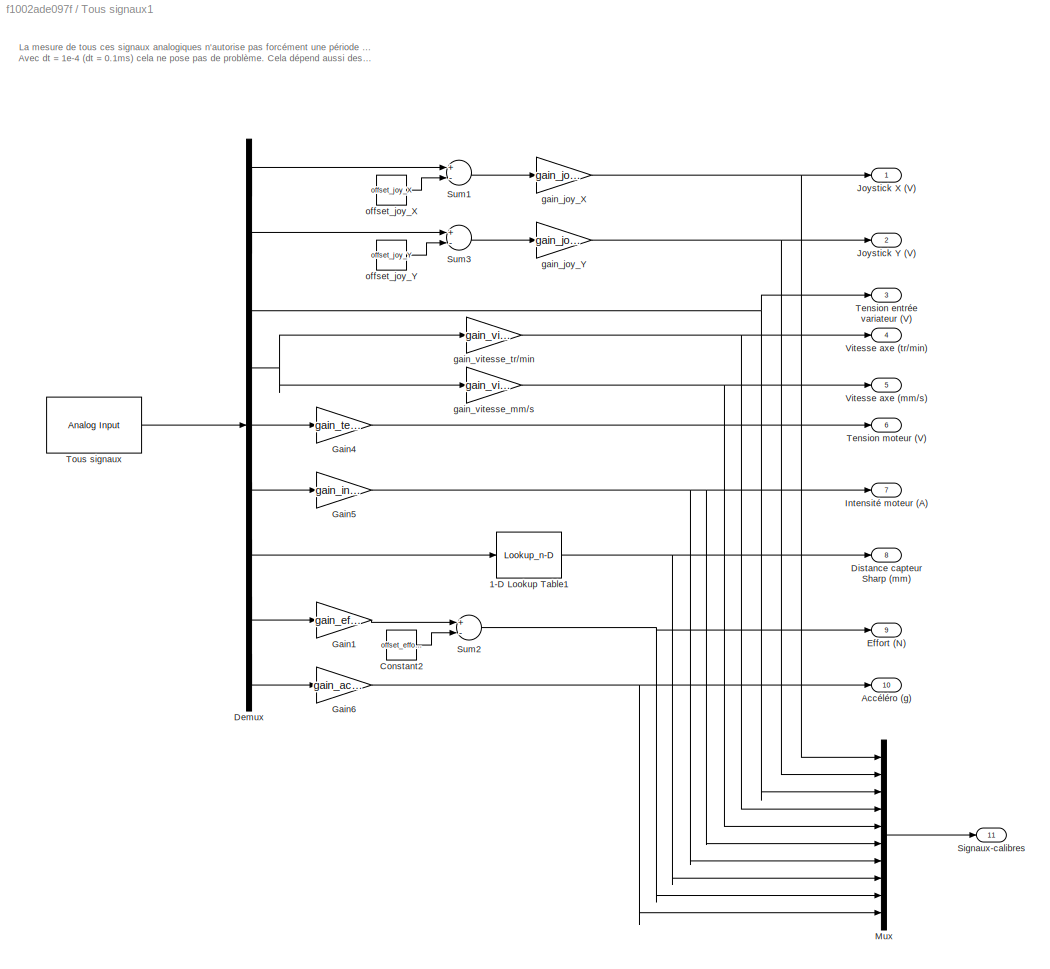
BLOCK [SubSystem] Tous signaux1
  Ports = [0, 11]
  RequestExecContextInheritance = off
BLOCK [Lookup_n-D] Tous signaux1/1-D Lookup Table1
  BreakpointsForDimension1 = vecteur_de_tensions
  ExtrapMethod = Clip
  InternalRulePriority = Speed
  NumberOfTableDimensions = 1
  Ports = [1, 1]
  RndMeth = Simplest
  Table = vecteur_des_distances
  UseLastTableValue = on
BLOCK [Outport] Tous signaux1/Accéléro (g)
  IconDisplay = Port number
  Port = 10
BLOCK [Constant] Tous signaux1/Constant2
  Value = offset_effort_ext
BLOCK [Demux] Tous signaux1/Demux
  DisplayOption = bar
  Outputs = 9
  Ports = [1, 9]
BLOCK [Outport] Tous signaux1/Distance capteur Sharp (mm)
  IconDisplay = Port number
  Port = 8
BLOCK [Outport] Tous signaux1/Effort (N)
  IconDisplay = Port number
  Port = 9
BLOCK [Gain] Tous signaux1/Gain1
  Gain = gain_effort_ext
  OutDataTypeStr = Inherit: Inherit via internal rule
  ParamDataTypeStr = Inherit: Inherit via internal rule
  SaturateOnIntegerOverflow = off
BLOCK [Gain] Tous signaux1/Gain4
  Gain = gain_tension_moteur
  OutDataTypeStr = Inherit: Inherit via internal rule
  ParamDataTypeStr = Inherit: Inherit via internal rule
  SaturateOnIntegerOverflow = off
BLOCK [Gain] Tous signaux1/Gain5
  Gain = gain_intensite_moteur
  OutDataTypeStr = Inherit: Inherit via internal rule
  ParamDataTypeStr = Inherit: Inherit via internal rule
  SaturateOnIntegerOverflow = off
BLOCK [Gain] Tous signaux1/Gain6
  Gain = gain_accelero
  OutDataTypeStr = Inherit: Inherit via internal rule
  ParamDataTypeStr = Inherit: Inherit via internal rule
  SaturateOnIntegerOverflow = off
BLOCK [Outport] Tous signaux1/Intensité moteur (A)
  IconDisplay = Port number
  Port = 7
BLOCK [Outport] Tous signaux1/Joystick X (V)
  IconDisplay = Port number
BLOCK [Outport] Tous signaux1/Joystick Y (V)
  IconDisplay = Port number
  Port = 2
BLOCK [Mux] Tous signaux1/Mux
  DisplayOption = bar
  Inputs = 10
  Ports = [10, 1]
BLOCK [Outport] Tous signaux1/Signaux-calibres
  IconDisplay = Port number
  Port = 11
BLOCK [Sum] Tous signaux1/Sum1
  InputSameDT = off
  Inputs = +-
  OutDataTypeStr = Inherit: Inherit via internal rule
  Ports = [2, 1]
  SaturateOnIntegerOverflow = off
BLOCK [Sum] Tous signaux1/Sum2
  InputSameDT = off
  Inputs = +-
  OutDataTypeStr = Inherit: Inherit via internal rule
  Ports = [2, 1]
  SaturateOnIntegerOverflow = off
BLOCK [Sum] Tous signaux1/Sum3
  InputSameDT = off
  Inputs = +-
  OutDataTypeStr = Inherit: Inherit via internal rule
  Ports = [2, 1]
  SaturateOnIntegerOverflow = off
BLOCK [Outport] Tous signaux1/Tension entrée variateur (V)
  IconDisplay = Port number
  Port = 3
BLOCK [Outport] Tous signaux1/Tension moteur (V)
  IconDisplay = Port number
  Port = 6
BLOCK [Reference] Tous signaux1/Tous signaux  REF=sldrtlib/Analog Input
  AttributesFormatString = National Instruments\nPCIe-6321 [auto]
  Channels = [1 2 3 4 5 6 7 14 15]
  DataType = 1
  DrvAddress = 4294967295
  DrvName = National_Instruments/PCIe-6321
  DrvOptions = [0 0 0 2 2 2 0]
  MaxMissedTicks = 10
  Ports = [0, 1]
  RangeMode = 1
  SampleTime = dt
  ShowMissedTicks = off
  SourceBlock = sldrtlib/Analog Input
  SourceType = Simulink Desktop Real-Time Analog Input
  VoltRange = 1
  YieldWhenWaiting = off
BLOCK [Outport] Tous signaux1/Vitesse axe (mm//s)
  IconDisplay = Port number
  Port = 5
BLOCK [Outport] Tous signaux1/Vitesse axe (tr//min)
  IconDisplay = Port number
  Port = 4
BLOCK [Gain] Tous signaux1/gain_joy_X
  Gain = gain_joy_X
  OutDataTypeStr = Inherit: Inherit via internal rule
  ParamDataTypeStr = Inherit: Inherit via internal rule
  SaturateOnIntegerOverflow = off
BLOCK [Gain] Tous signaux1/gain_joy_Y
  Gain = gain_joy_X
  OutDataTypeStr = Inherit: Inherit via internal rule
  ParamDataTypeStr = Inherit: Inherit via internal rule
  SaturateOnIntegerOverflow = off
BLOCK [Gain] Tous signaux1/gain_vitesse_mm//s
  Gain = gain_vitesse_mm_s
  OutDataTypeStr = Inherit: Inherit via internal rule
  ParamDataTypeStr = Inherit: Inherit via internal rule
  SaturateOnIntegerOverflow = off
BLOCK [Gain] Tous signaux1/gain_vitesse_tr//min
  Gain = gain_vitesse_tr_min
  OutDataTypeStr = Inherit: Inherit via internal rule
  ParamDataTypeStr = Inherit: Inherit via internal rule
  SaturateOnIntegerOverflow = off
BLOCK [Constant] Tous signaux1/offset_joy_X
  Value = offset_joy_X
BLOCK [Constant] Tous signaux1/offset_joy_Y
  Value = offset_joy_Y
BLOCK [TransferFcn] Transfer Fcn
  Denominator = [1 1]
BLOCK [SubSystem] Vitesse axe (mm//s)
  Ports = [0, 1]
  RequestExecContextInheritance = off
BLOCK [Reference] Vitesse axe (mm//s)/Géné tachy (V)  REF=sldrtlib/Analog Input
  AttributesFormatString = National Instruments\nPCIe-6321 [auto]
  Channels = 4
  DataType = 1
  DrvAddress = 4294967295
  DrvName = National_Instruments/PCIe-6321
  DrvOptions = [0 0 0 2 2 2 0]
  MaxMissedTicks = 10
  Ports = [0, 1]
  RangeMode = 1
  SampleTime = dt
  ShowMissedTicks = off
  SourceBlock = sldrtlib/Analog Input
  SourceType = Simulink Desktop Real-Time Analog Input
  VoltRange = 1
  YieldWhenWaiting = off
BLOCK [TransferFcn] Vitesse axe (mm//s)/Transfer Fcn
  Denominator = [0.001 1]
BLOCK [Outport] Vitesse axe (mm//s)/Vitesse axe (mm//s)
  IconDisplay = Port number
BLOCK [Gain] Vitesse axe (mm//s)/gain_vitesse_mm_s
  Gain = gain_vitesse_mm_s
  OutDataTypeStr = Inherit: Inherit via internal rule
  ParamDataTypeStr = Inherit: Inherit via internal rule
  SaturateOnIntegerOverflow = off
BLOCK [Reference] XY Graph  REF=simulink/Sinks/XY Graph
  Ports = [2]
  SourceBlock = simulink/Sinks/XY Graph
  SourceType = XY scope.
  st = -1
  xmax = 1
  xmin = -1
  ymax = 1
  ymin = -1
BLOCK [SubSystem] vers variateur (V)
  Ports = [1]
  RequestExecContextInheritance = off
BLOCK [Reference] vers variateur (V)/Analog Output  REF=sldrtlib/Analog Output
  AttributesFormatString = National Instruments\nPCIe-6321 [auto]
  Channels = 1
  DrvAddress = 4294967295
  DrvName = National_Instruments/PCIe-6321
  DrvOptions = [0 0 0 2 2 2 0]
  FinalValue = 0
  InitialValue = []
  MaxMissedTicks = 10
  Ports = [1]
  RangeMode = 1
  SampleTime = dt
  ShowMissedTicks = off
  SourceBlock = sldrtlib/Analog Output
  SourceType = Simulink Desktop Real-Time Analog Output
  VoltRange = 1
  YieldWhenWaiting = off
BLOCK [Saturate] vers variateur (V)/Saturation
  InputPortMap = u0
  LowerLimit = -10
  Ports = [1, 1]
  UpperLimit = 10
BLOCK [SubSystem] vers variateur (V)/Sécurité
  Ports = [1, 1]
  RequestExecContextInheritance = off
BLOCK [Reference] vers variateur (V)/Sécurité/Digital Input  REF=sldrtlib/Digital Input
  AttributesFormatString = National Instruments\nPCIe-6321 [auto]
  BitMode = 1
  Channels = 3
  DataType = 9
  DrvAddress = 4294967295
  DrvName = National_Instruments/PCIe-6321
  DrvOptions = [0 0 0 2 2 2 0]
  MaxMissedTicks = 10
  Ports = [0, 1]
  SampleTime = dt
  ShowMissedTicks = off
  SourceBlock = sldrtlib/Digital Input
  SourceType = Simulink Desktop Real-Time Digital Input
  YieldWhenWaiting = off
BLOCK [Reference] vers variateur (V)/Sécurité/Digital Input1  REF=sldrtlib/Digital Input
  AttributesFormatString = National Instruments\nPCIe-6321 [auto]
  BitMode = 1
  Channels = 2
  DataType = 9
  DrvAddress = 4294967295
  DrvName = National_Instruments/PCIe-6321
  DrvOptions = [0 0 0 2 2 2 0]
  MaxMissedTicks = 10
  Ports = [0, 1]
  SampleTime = dt
  ShowMissedTicks = off
  SourceBlock = sldrtlib/Digital Input
  SourceType = Simulink Desktop Real-Time Digital Input
  YieldWhenWaiting = off
BLOCK [Display] vers variateur (V)/Sécurité/Display
  Decimation = 3
  Ports = [1]
BLOCK [Display] vers variateur (V)/Sécurité/Display1
  Decimation = 1
  Ports = [1]
BLOCK [Display] vers variateur (V)/Sécurité/Display2
  Decimation = 3
  Ports = [1]
BLOCK [Display] vers variateur (V)/Sécurité/Display3
  Decimation = 3
  Ports = [1]
BLOCK [Lookup] vers variateur (V)/Sécurité/Lookup Table
  InputValues = [-Vsat 0 Vsat]
  SaturateOnIntegerOverflow = off
  Table = [0 0 Vsat]
BLOCK [Lookup] vers variateur (V)/Sécurité/Lookup Table1
  InputValues = [-Vsat 0 Vsat]
  SaturateOnIntegerOverflow = off
  Table = [-Vsat 0 0]
BLOCK [Switch] vers variateur (V)/Sécurité/Switch
  Criteria = u2 ~= 0
  InputSameDT = off
  SaturateOnIntegerOverflow = off
BLOCK [Switch] vers variateur (V)/Sécurité/Switch1
  Criteria = u2 ~= 0
  InputSameDT = off
  SaturateOnIntegerOverflow = off
BLOCK [Inport] vers variateur (V)/Sécurité/U entrée
  IconDisplay = Port number
BLOCK [Outport] vers variateur (V)/Sécurité/U sortie
  IconDisplay = Port number
BLOCK [Inport] vers variateur (V)/Tension (V)
  IconDisplay = Port number
ANNOTATION (root): Correcteurs
ANNOTATION (root): Entrées usuelles
ANNOTATION (root): Opérations mathématiques
ANNOTATION (root): Signal routing
ANNOTATION (root): Signaux analogiques calibrés
ANNOTATION (root): Signaux analogiques non calibrés
ANNOTATION (root): Signaux numériques
ANNOTATION (root): Sorties usuelles
ANNOTATION Accélération (g): Ajuster l'offset en fonction de l'objectif visé
ANNOTATION Capteur d'effort (N): Ajuster éventuellement l'offset du capteur d'effort pour que l'effort renvoyé soit nulle lorsque aucun effort n'est appliqué
ANNOTATION Control'X : modèle non linéaire de boucle ouverte: Moteur
ANNOTATION Position chariot (mm) (règle magnétique): Dans cette boite, l'option "reset" ou "none" du champ "Rest input function" permet de valider ou non le canal Z (top 0 situé à mi-course) de la règle magnétique. Il s'agit d'une remise à 0 automatique du compteur au passage du top 0.
ANNOTATION Subsystem: Ajuster éventuellement les offset t pour quela tension affichée en sortie soit nulle lorsque le joystick n'est pas actionné
ANNOTATION Tous signaux1: La mesure de tous ces signaux analogiques n'autorise pas forcément une période d'échantillonnage bien basse. Avec dt = 1e-4 (dt = 0.1ms) cela ne pose pas de problème. Cela dépend aussi des performances de l'ordinateur.
ANNOTATION vers variateur (V)/Sécurité: butée droite
ANNOTATION vers variateur (V)/Sécurité: butée gauche
LINE Accélération (g)/Accélération (X)1:1 -> Accélération (g)/Gain6:1
LINE Accélération (g)/Constant1:1 -> Accélération (g)/Sum1:2
LINE Accélération (g)/Gain6:1 -> Accélération (g)/Sum1:1
LINE Accélération (g)/Sum1:1 -> Accélération (g)/Transfer Fcn:1
NET Accélération (g)/Transfer Fcn:1 -> Accélération (g)/Accélération (g):1, Accélération (g)/Display:1
LINE Capteur d'effort (N)/Capteur effort (V)1:1 -> Capteur d'effort (N)/Gain:1
LINE Capteur d'effort (N)/Gain:1 -> Capteur d'effort (N)/Sum2:1
LINE Capteur d'effort (N)/Offset:1 -> Capteur d'effort (N)/Sum2:2
NET Capteur d'effort (N)/Sum2:1 -> Capteur d'effort (N)/Display:1, Capteur d'effort (N)/Effort (N):1
LINE Control'X : modèle non linéaire de boucle ouverte/CNA carte de commande:1 -> Control'X : modèle non linéaire de boucle ouverte/Variateur:1
LINE Control'X : modèle non linéaire de boucle ouverte/Coulomb & Viscous Friction:1 -> Control'X : modèle non linéaire de boucle ouverte/Sum2:2
LINE Control'X : modèle non linéaire de boucle ouverte/Epsilon 2 (V):1 -> Control'X : modèle non linéaire de boucle ouverte/CNA carte de commande:1
LINE Control'X : modèle non linéaire de boucle ouverte/Eq électrique:1 -> Control'X : modèle non linéaire de boucle ouverte/Gain1:1
LINE Control'X : modèle non linéaire de boucle ouverte/Force perturbatrice (N):1 -> Control'X : modèle non linéaire de boucle ouverte/Sum2:1
LINE Control'X : modèle non linéaire de boucle ouverte/Gain1:1 -> Control'X : modèle non linéaire de boucle ouverte/Sum1:2
LINE Control'X : modèle non linéaire de boucle ouverte/Gain2:1 -> Control'X : modèle non linéaire de boucle ouverte/Sum:2
LINE Control'X : modèle non linéaire de boucle ouverte/Gain3:1 -> Control'X : modèle non linéaire de boucle ouverte/Integrator1:1
NET Control'X : modèle non linéaire de boucle ouverte/Integrator1:1 -> Control'X : modèle non linéaire de boucle ouverte/Coulomb & Viscous Friction:1, Control'X : modèle non linéaire de boucle ouverte/Gain2:1, Control'X : modèle non linéaire de boucle ouverte/Poulies-courroie:1
LINE Control'X : modèle non linéaire de boucle ouverte/Integrator:1 -> Control'X : modèle non linéaire de boucle ouverte/Position chariot (mm):1
NET Control'X : modèle non linéaire de boucle ouverte/Poulies-courroie:1 -> Control'X : modèle non linéaire de boucle ouverte/Integrator:1, Control'X : modèle non linéaire de boucle ouverte/Vitesse chariot (mm//s):1
LINE Control'X : modèle non linéaire de boucle ouverte/Sum1:1 -> Control'X : modèle non linéaire de boucle ouverte/Gain3:1
LINE Control'X : modèle non linéaire de boucle ouverte/Sum2:1 -> Control'X : modèle non linéaire de boucle ouverte/Sum1:1
LINE Control'X : modèle non linéaire de boucle ouverte/Sum:1 -> Control'X : modèle non linéaire de boucle ouverte/Eq électrique:1
LINE Control'X : modèle non linéaire de boucle ouverte/Variateur:1 -> Control'X : modèle non linéaire de boucle ouverte/Sum:1
LINE D1:1 -> Sum5:3
LINE Derivee1:1 -> D1:1
LINE Distance (mm) capteur Sharp/1-D Lookup Table2:1 -> Distance (mm) capteur Sharp/Transfer Fcn1:1
LINE Distance (mm) capteur Sharp/Transfer Fcn1:1 -> Distance (mm) capteur Sharp/Distance (mm) capteur Sharp:1
LINE Distance (mm) capteur Sharp/capteur IR Sharp (V)1:1 -> Distance (mm) capteur Sharp/1-D Lookup Table2:1
LINE I1:1 -> Sum5:2
LINE Integrateur1:1 -> I1:1
LINE Intensité (A)/Intensité  (V) et effort (V):1 -> Intensité (A)/gain_intensite_moteur:1
LINE Intensité (A)/gain_intensite_moteur:1 -> Intensité (A)/Out1:1
LINE P1:1 -> Sum5:1
LINE Position chariot (mm) (codeur moteur)/Adaptateur1:1 -> Position chariot (mm) (codeur moteur)/Position (mm):1
LINE Position chariot (mm) (codeur moteur)/Codeur incremental:1 -> Position chariot (mm) (codeur moteur)/Adaptateur1:1
LINE Position chariot (mm) (règle magnétique)/Position chariot (inc):1 -> Position chariot (mm) (règle magnétique)/gain_regle_mg_mm:1
LINE Position chariot (mm) (règle magnétique)/gain_regle_mg_mm:1 -> Position chariot (mm) (règle magnétique)/Position chariot (mm) (règle magnétique):1
LINE Position moteur (rad)/Position moteur (inc):1 -> Position moteur (rad)/gain_encodeur_moteur_rad:1
LINE Position moteur (rad)/gain_encodeur_moteur_rad:1 -> Position moteur (rad)/Position moteur (rad):1
LINE Pour retour état/Demux:1 -> Pour retour état/gain_vitesse_mm//s:1
LINE Pour retour état/Demux:2 -> Pour retour état/gain_intensite_moteur:1
LINE Pour retour état/Mux:1 -> Pour retour état/Vecteur_Etat_Moteur_lin_eq:1
NET Pour retour état/P1:1 -> Pour retour état/Mux:2, Pour retour état/Position chariot (m):1
NET Pour retour état/P:1 -> Pour retour état/Mux:3, Pour retour état/Vitesse axe (m//s):1
LINE Pour retour état/Position chariot (inc):1 -> Pour retour état/gain_regle_mg_mm:1
LINE Pour retour état/Tous signaux:1 -> Pour retour état/Demux:1
NET Pour retour état/gain_intensite_moteur:1 -> Pour retour état/Intensité moteur (A):1, Pour retour état/Mux:1
LINE Pour retour état/gain_regle_mg_mm:1 -> Pour retour état/P1:1
LINE Pour retour état/gain_vitesse_mm//s:1 -> Pour retour état/P:1
LINE Subsystem/Demux:1 -> Subsystem/Sum1:1
LINE Subsystem/Demux:2 -> Subsystem/Sum3:1
LINE Subsystem/Sum1:1 -> Subsystem/gain_joy_X:1
LINE Subsystem/Sum3:1 -> Subsystem/gain_joy_Y:1
LINE Subsystem/Tous signaux:1 -> Subsystem/Demux:1
NET Subsystem/gain_joy_X:1 -> Subsystem/Display:1, Subsystem/Joystick X (V):1
NET Subsystem/gain_joy_Y:1 -> Subsystem/Display1:1, Subsystem/Joystick Y (V):1
LINE Subsystem/offset_joy_X:1 -> Subsystem/Sum1:2
LINE Subsystem/offset_joy_Y:1 -> Subsystem/Sum3:2
LINE Subsystem1/Codeur incremental:1 -> Subsystem1/Demux1:1
LINE Subsystem1/Demux1:1 -> Subsystem1/gain:1
LINE Subsystem1/Demux1:2 -> Subsystem1/gain_regle_mg_mm:1
LINE Subsystem1/gain:1 -> Subsystem1/Position moteur (mm) (codeur moteur):1
LINE Subsystem1/gain_regle_mg_mm:1 -> Subsystem1/Position chariot (mm) (règle magnétique):1
NET Sum1:1 -> Derivee1:1, Integrateur1:1, P1:1
LINE Tension moteur moyenne (V)/P:1 -> Tension moteur moyenne (V)/Out1:1
LINE Tension moteur moyenne (V)/Tension moteur brute (V :1 -> Tension moteur moyenne (V)/P:1
NET Tous signaux1/1-D Lookup Table1:1 -> Tous signaux1/Distance capteur Sharp (mm):1, Tous signaux1/Mux:8
LINE Tous signaux1/Constant2:1 -> Tous signaux1/Sum2:2
LINE Tous signaux1/Demux:1 -> Tous signaux1/Sum1:1
LINE Tous signaux1/Demux:2 -> Tous signaux1/Sum3:1
NET Tous signaux1/Demux:3 -> Tous signaux1/Mux:3, Tous signaux1/Tension entrée variateur (V):1
NET Tous signaux1/Demux:4 -> Tous signaux1/gain_vitesse_mm//s:1, Tous signaux1/gain_vitesse_tr//min:1
LINE Tous signaux1/Demux:5 -> Tous signaux1/Gain4:1
LINE Tous signaux1/Demux:6 -> Tous signaux1/Gain5:1
LINE Tous signaux1/Demux:7 -> Tous signaux1/1-D Lookup Table1:1
LINE Tous signaux1/Demux:8 -> Tous signaux1/Gain1:1
LINE Tous signaux1/Demux:9 -> Tous signaux1/Gain6:1
LINE Tous signaux1/Gain1:1 -> Tous signaux1/Sum2:1
LINE Tous signaux1/Gain4:1 -> Tous signaux1/Tension moteur (V):1
NET Tous signaux1/Gain5:1 -> Tous signaux1/Intensité moteur (A):1, Tous signaux1/Mux:6, Tous signaux1/Mux:7
NET Tous signaux1/Gain6:1 -> Tous signaux1/Accéléro (g):1, Tous signaux1/Mux:10
LINE Tous signaux1/Mux:1 -> Tous signaux1/Signaux-calibres:1
LINE Tous signaux1/Sum1:1 -> Tous signaux1/gain_joy_X:1
NET Tous signaux1/Sum2:1 -> Tous signaux1/Effort (N):1, Tous signaux1/Mux:9
LINE Tous signaux1/Sum3:1 -> Tous signaux1/gain_joy_Y:1
LINE Tous signaux1/Tous signaux:1 -> Tous signaux1/Demux:1
NET Tous signaux1/gain_joy_X:1 -> Tous signaux1/Joystick X (V):1, Tous signaux1/Mux:1
NET Tous signaux1/gain_joy_Y:1 -> Tous signaux1/Joystick Y (V):1, Tous signaux1/Mux:2
NET Tous signaux1/gain_vitesse_mm//s:1 -> Tous signaux1/Mux:5, Tous signaux1/Vitesse axe (mm//s):1
NET Tous signaux1/gain_vitesse_tr//min:1 -> Tous signaux1/Mux:4, Tous signaux1/Vitesse axe (tr//min):1
LINE Tous signaux1/offset_joy_X:1 -> Tous signaux1/Sum1:2
LINE Tous signaux1/offset_joy_Y:1 -> Tous signaux1/Sum3:2
LINE Vitesse axe (mm//s)/Géné tachy (V):1 -> Vitesse axe (mm//s)/Transfer Fcn:1
LINE Vitesse axe (mm//s)/Transfer Fcn:1 -> Vitesse axe (mm//s)/gain_vitesse_mm_s:1
LINE Vitesse axe (mm//s)/gain_vitesse_mm_s:1 -> Vitesse axe (mm//s)/Vitesse axe (mm//s):1
LINE vers variateur (V)/Saturation:1 -> vers variateur (V)/Sécurité:1
NET vers variateur (V)/Sécurité/Digital Input1:1 -> vers variateur (V)/Sécurité/Display:1, vers variateur (V)/Sécurité/Switch1:2
NET vers variateur (V)/Sécurité/Digital Input:1 -> vers variateur (V)/Sécurité/Display1:1, vers variateur (V)/Sécurité/Switch:2
LINE vers variateur (V)/Sécurité/Lookup Table1:1 -> vers variateur (V)/Sécurité/Switch1:3
LINE vers variateur (V)/Sécurité/Lookup Table:1 -> vers variateur (V)/Sécurité/Switch:3
NET vers variateur (V)/Sécurité/Switch1:1 -> vers variateur (V)/Sécurité/Display2:1, vers variateur (V)/Sécurité/U sortie:1
NET vers variateur (V)/Sécurité/Switch:1 -> vers variateur (V)/Sécurité/Lookup Table1:1, vers variateur (V)/Sécurité/Switch1:1
NET vers variateur (V)/Sécurité/U entrée:1 -> vers variateur (V)/Sécurité/Display3:1, vers variateur (V)/Sécurité/Lookup Table:1, vers variateur (V)/Sécurité/Switch:1
LINE vers variateur (V)/Sécurité:1 -> vers variateur (V)/Analog Output:1
LINE vers variateur (V)/Tension (V):1 -> vers variateur (V)/Saturation:1
note: NET lines group one-source signal fan-out (src -> all destinations, sorted); 1:1 wires keep LINE
